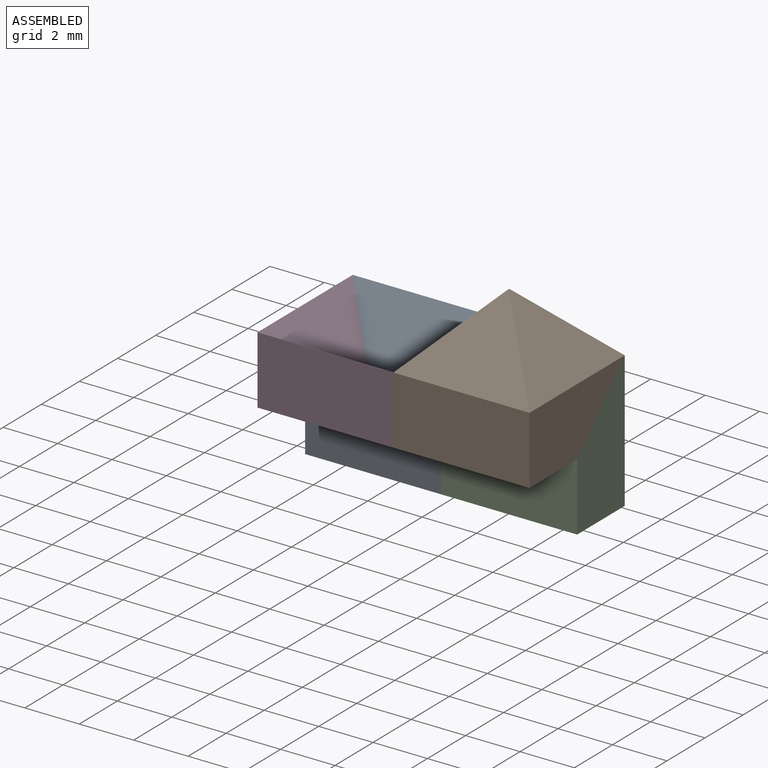
[diagram: assembled view]
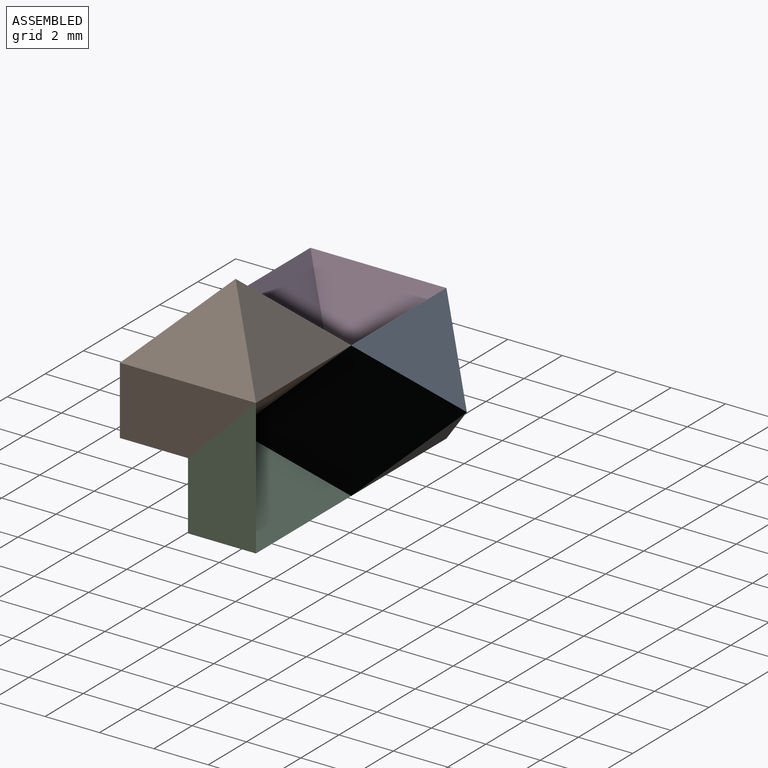
[diagram: assembled view, second angle]
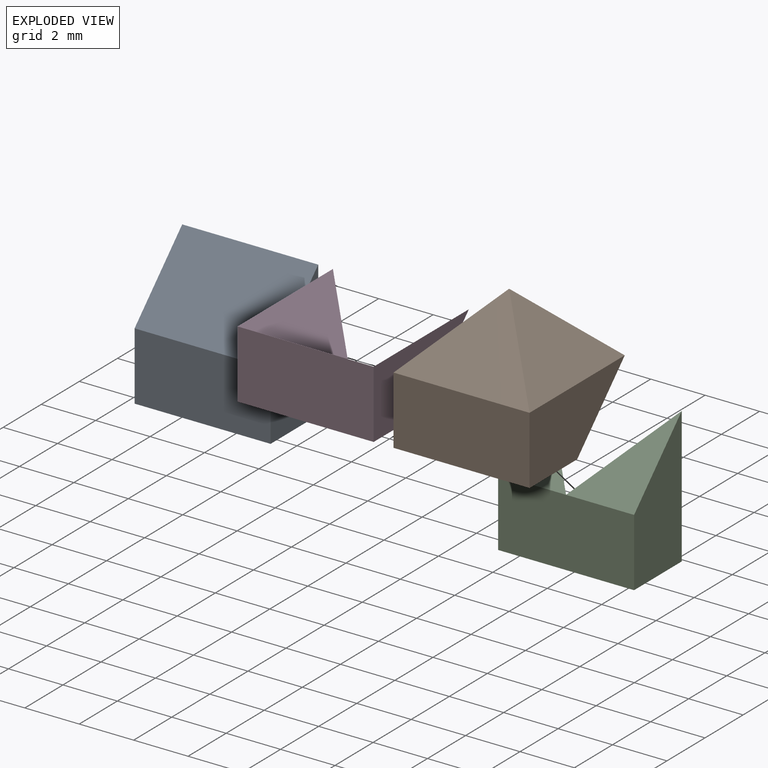
[diagram: exploded view]
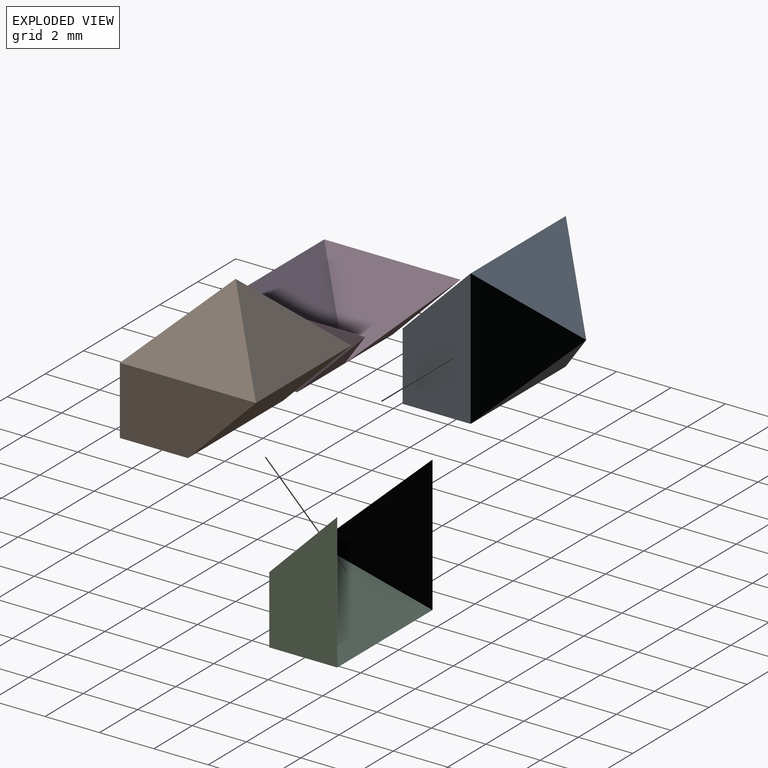
[diagram: exploded view, second angle]
ASSEMBLY  parts=4 mates=3
PART A: 9 faces, bbox 5x5x5 mm
  f0: plane 5x2.5mm, normal (1,0,0), area 9.4mm2, adj f1,f2,f4,f8
  f1: plane 5x2.5mm, normal (0,-1,0), area 12.5mm2, adj f0,f3,f6,f8
  f2: plane 5x2.5mm, normal (0,0.71,-0.71), area 17.7mm2, adj f0,f3,f7,f8
  f3: plane 5x2.5mm, normal (-1,0,0), area 9.4mm2, adj f1,f2,f5,f8
  f4: plane 5x2.5mm, normal (0.71,0,0.71), area 8.8mm2, adj f0,f6,f7
  f5: plane 5x2.5mm, normal (-0.71,0,0.71), area 8.8mm2, adj f3,f6,f7
  f6: plane 5x2.5mm, normal (0,-0.71,0.71), area 8.8mm2, adj f1,f4,f5
  f7: plane 5x2.5mm, normal (0,0.71,0.71), area 8.8mm2, adj f2,f4,f5
  f8: plane 5x2.5mm, normal (0,0,-1), area 12.5mm2, adj f0,f1,f2,f3
PART B: same geometry as A
PART C: 9 faces, bbox 5x5x2.5 mm
  f0: plane 5x2.5mm, normal (1,0,0), area 12.5mm2, adj f2,f3,f4,f8
  f1: plane 2.5x2.5mm, normal (-0.71,0,-0.71), area 4.4mm2, adj f2,f6,f8
  f2: plane 5x2.5mm, normal (0,1,0), area 9.4mm2, adj f0,f1,f6,f8
  f3: plane 5x2.5mm, normal (-0.71,0,0.71), area 8.8mm2, adj f0,f5,f6
  f4: plane 5x2.5mm, normal (0,-1,0), area 9.4mm2, adj f0,f5,f7,f8
  f5: plane 5x2.5mm, normal (0,0.71,0.71), area 8.8mm2, adj f3,f4,f7
  f6: plane 5x2.5mm, normal (0,-0.71,0.71), area 8.8mm2, adj f1,f2,f3
  f7: plane 2.5x2.5mm, normal (-0.71,0,-0.71), area 4.4mm2, adj f4,f5,f8
  f8: plane 5x2.5mm, normal (0,0,-1), area 12.5mm2, adj f0,f1,f2,f4,f7
PART D: same geometry as C
PLACE A rot(axis=(0,-0.71,-0.71),180deg) t=(-5,-2.5,2.5)mm
PLACE B at identity
PLACE C rot(axis=(-0.58,0.58,0.58),120deg) t=(0,-2.5,2.5)mm
PLACE D rot(axis=(0,0,-1),90deg) t=(-5,0,0)mm
MATE fastened D.f2 <-> B.f3  axis (1,0,0) through (-2.5,-0.56,3.89)mm
MATE fastened C.f1 <-> B.f2  axis (0,-0.71,0.71) through (0,0,2.5)mm
MATE fastened A.f3 <-> C.f2  axis (1,0,0) through (-2.5,1.39,1.94)mm
